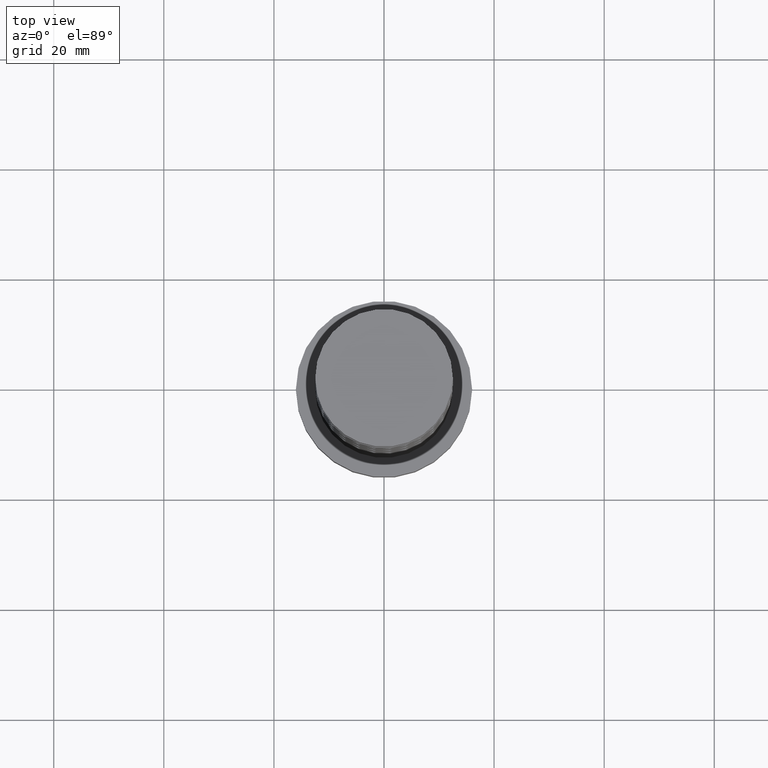
[diagram: clean part render]
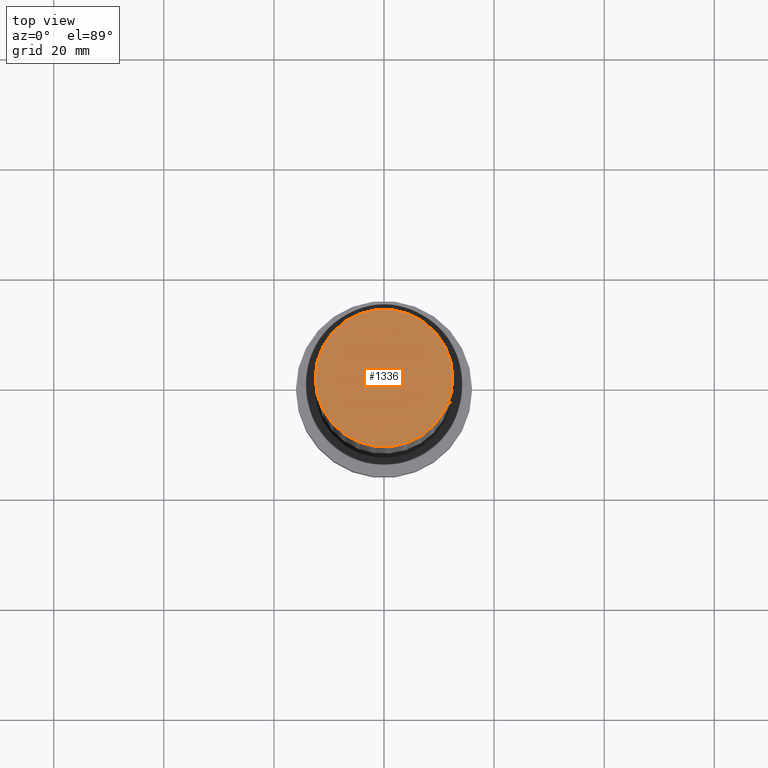
[diagram: same view with one face highlighted and labeled with its STEP entity id]
A machine part, top view. The second image highlights one B-rep face of the part: STEP entity #1336.
In plain terms, the highlighted planar face has unit normal (0, 0, 1).
Its self-contained STEP definition (entity closure, byte-faithful):
#35 = AXIS2_PLACEMENT_3D ( 'NONE', #1534, #1406, #670 ) ;
#42 = PLANE ( 'NONE',  #1450 ) ;
#208 = CARTESIAN_POINT ( 'NONE',  ( 12.50000000000000000, 1.530808498934191521E-15, 125.0000000000000000 ) ) ;
#345 = ORIENTED_EDGE ( 'NONE', *, *, #1466, .T. ) ;
#374 = CARTESIAN_POINT ( 'NONE',  ( 0.000000000000000000, 0.000000000000000000, 125.0000000000000000 ) ) ;
#443 = ORIENTED_EDGE ( 'NONE', *, *, #1026, .T. ) ;
#518 = DIRECTION ( 'NONE',  ( 1.000000000000000000, 0.000000000000000000, -0.000000000000000000 ) ) ;
#540 = CARTESIAN_POINT ( 'NONE',  ( -12.50000000000000000, 0.000000000000000000, 125.0000000000000000 ) ) ;
#661 = DIRECTION ( 'NONE',  ( 0.000000000000000000, 0.000000000000000000, 1.000000000000000000 ) ) ;
#670 = DIRECTION ( 'NONE',  ( 1.000000000000000000, 0.000000000000000000, 0.000000000000000000 ) ) ;
#722 = CIRCLE ( 'NONE', #1352, 12.50000000000000000 ) ;
#776 = DIRECTION ( 'NONE',  ( 0.000000000000000000, 0.000000000000000000, 1.000000000000000000 ) ) ;
#782 = EDGE_LOOP ( 'NONE', ( #345, #443 ) ) ;
#872 = CIRCLE ( 'NONE', #35, 12.50000000000000000 ) ;
#1026 = EDGE_CURVE ( 'NONE', #1431, #1029, #722, .T. ) ;
#1029 = VERTEX_POINT ( 'NONE', #540 ) ;
#1143 = DIRECTION ( 'NONE',  ( 1.000000000000000000, 0.000000000000000000, 0.000000000000000000 ) ) ;
#1223 = FACE_OUTER_BOUND ( 'NONE', #782, .T. ) ;
#1264 = CARTESIAN_POINT ( 'NONE',  ( 0.000000000000000000, 0.000000000000000000, 125.0000000000000000 ) ) ;
#1336 = ADVANCED_FACE ( 'NONE', ( #1223 ), #42, .T. ) ;
#1352 = AXIS2_PLACEMENT_3D ( 'NONE', #1264, #661, #1143 ) ;
#1406 = DIRECTION ( 'NONE',  ( 0.000000000000000000, 0.000000000000000000, 1.000000000000000000 ) ) ;
#1431 = VERTEX_POINT ( 'NONE', #208 ) ;
#1450 = AXIS2_PLACEMENT_3D ( 'NONE', #374, #776, #518 ) ;
#1466 = EDGE_CURVE ( 'NONE', #1029, #1431, #872, .T. ) ;
#1534 = CARTESIAN_POINT ( 'NONE',  ( 0.000000000000000000, 0.000000000000000000, 125.0000000000000000 ) ) ;